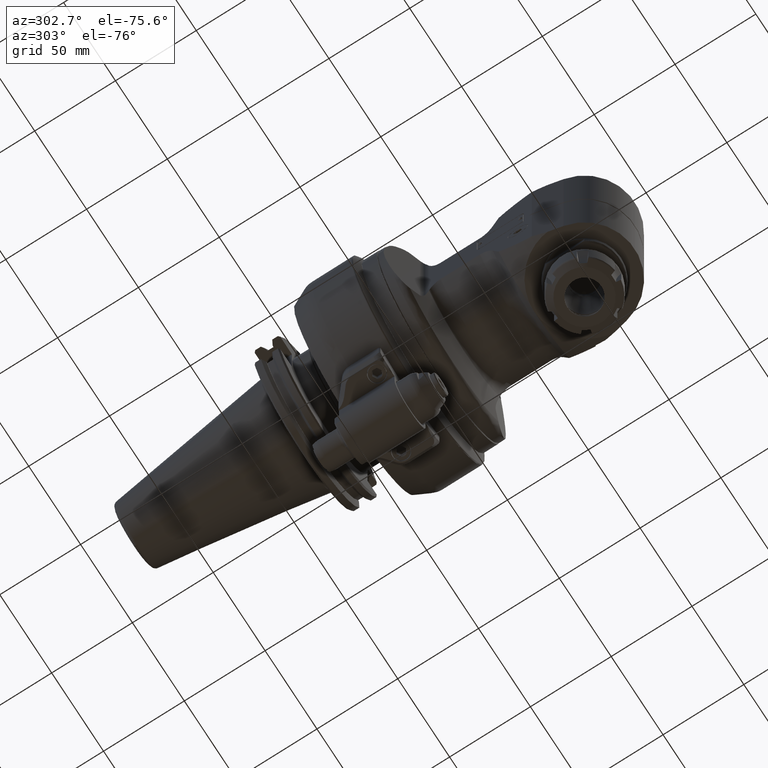
[diagram: clean part render]
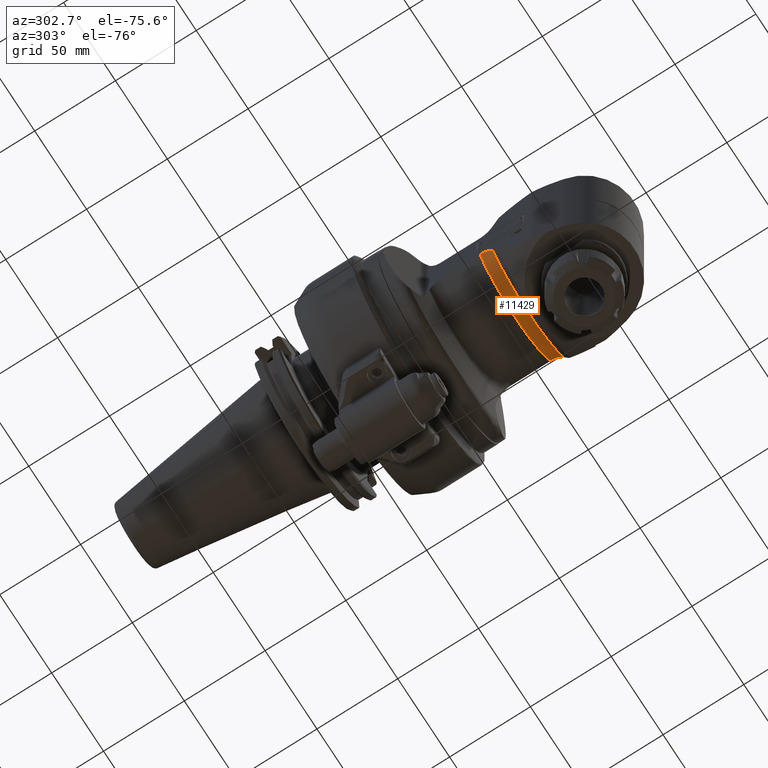
[diagram: same view with one face highlighted and labeled with its STEP entity id]
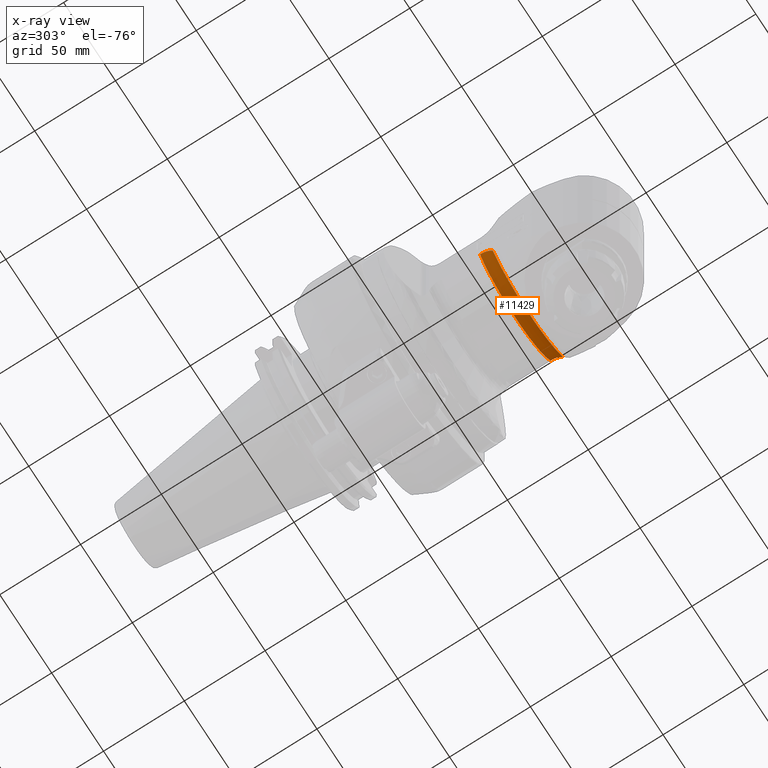
[diagram: x-ray of the same camera — body ghosted, the highlighted face saturated]
A machine part, auxiliary view. The second image highlights one B-rep face of the part: STEP entity #11429.
The next image is the same camera in x-ray: the body ghosted, the highlighted face saturated — about 0% of this face is hidden behind the body in this view.
In plain terms, the highlighted toroidal blend (fillet) surface has major radius 47 mm and minor (blend) radius 9 mm.
Its self-contained STEP definition (entity closure, byte-faithful):
#185=B_SPLINE_CURVE_WITH_KNOTS('',3,(#17447,#17448,#17449,#17450,#17451,
#17452,#17453,#17454,#17455,#17456,#17457,#17458,#17459,#17460),
 .UNSPECIFIED.,.F.,.F.,(4,2,2,2,2,2,4),(2.24338921671795,2.42136508411959,
2.7017409437378,2.91218233429832,3.12262372485883,3.26662172016158,3.38938345646085),
 .UNSPECIFIED.);
#196=B_SPLINE_CURVE_WITH_KNOTS('',3,(#17814,#17815,#17816,#17817,#17818,
#17819,#17820,#17821,#17822,#17823,#17824,#17825,#17826,#17827),
 .UNSPECIFIED.,.F.,.F.,(4,2,2,2,2,2,4),(-4.53537769620374,-4.3574018288021,
-4.07702596918389,-3.86658457862338,-3.65614318806286,-3.51214519276011,
-3.38938345646085),.UNSPECIFIED.);
#381=TOROIDAL_SURFACE('',#12272,47.,9.);
#968=CIRCLE('',#12259,42.5);
#975=CIRCLE('',#12273,38.);
#1605=FACE_OUTER_BOUND('',#2330,.T.);
#2330=EDGE_LOOP('',(#7835,#7836,#7837,#7838));
#4650=VERTEX_POINT('',#17442);
#4651=VERTEX_POINT('',#17446);
#4724=VERTEX_POINT('',#17811);
#4725=VERTEX_POINT('',#17813);
#5826=EDGE_CURVE('',#4650,#4651,#185,.T.);
#5915=EDGE_CURVE('',#4725,#4724,#196,.T.);
#5937=EDGE_CURVE('',#4650,#4725,#968,.T.);
#5944=EDGE_CURVE('',#4724,#4651,#975,.T.);
#7835=ORIENTED_EDGE('',*,*,#5944,.T.);
#7836=ORIENTED_EDGE('',*,*,#5826,.F.);
#7837=ORIENTED_EDGE('',*,*,#5937,.T.);
#7838=ORIENTED_EDGE('',*,*,#5915,.T.);
#11429=ADVANCED_FACE('',(#1605),#381,.F.);
#12259=AXIS2_PLACEMENT_3D('',#17889,#13859,#13860);
#12272=AXIS2_PLACEMENT_3D('',#17902,#13885,#13886);
#12273=AXIS2_PLACEMENT_3D('',#17903,#13887,#13888);
#13859=DIRECTION('center_axis',(-1.,0.,0.));
#13860=DIRECTION('ref_axis',(0.,1.,0.));
#13885=DIRECTION('center_axis',(-1.,0.,0.));
#13886=DIRECTION('ref_axis',(0.,0.,1.));
#13887=DIRECTION('center_axis',(1.,0.,0.));
#13888=DIRECTION('ref_axis',(0.,0.44659375653888,-0.894736842105259));
#17442=CARTESIAN_POINT('',(243.006472673,25.5,34.));
#17446=CARTESIAN_POINT('',(235.2122440389,16.97056274848,34.));
#17447=CARTESIAN_POINT('Ctrl Pts',(243.006472672964,25.5000000000124,34.));
#17448=CARTESIAN_POINT('Ctrl Pts',(242.801163143501,24.9073224394958,34.));
#17449=CARTESIAN_POINT('Ctrl Pts',(242.563063857014,24.3019762332053,34.));
#17450=CARTESIAN_POINT('Ctrl Pts',(241.879221421984,22.775617262053,34.));
#17451=CARTESIAN_POINT('Ctrl Pts',(241.390853415105,21.8740827520354,34.));
#17452=CARTESIAN_POINT('Ctrl Pts',(240.499302079956,20.5022881748303,34.));
#17453=CARTESIAN_POINT('Ctrl Pts',(240.041991813742,19.8818483557008,34.));
#17454=CARTESIAN_POINT('Ctrl Pts',(239.018125943999,18.7484497607113,34.));
#17455=CARTESIAN_POINT('Ctrl Pts',(238.450410072228,18.236539663176,34.));
#17456=CARTESIAN_POINT('Ctrl Pts',(237.466115327277,17.5830700752859,34.));
#17457=CARTESIAN_POINT('Ctrl Pts',(236.952877761955,17.3216241650835,34.));
#17458=CARTESIAN_POINT('Ctrl Pts',(236.105867080769,17.0509805712282,34.));
#17459=CARTESIAN_POINT('Ctrl Pts',(235.621449826564,16.9705627484771,34.));
#17460=CARTESIAN_POINT('Ctrl Pts',(235.2122440389,16.9705627484771,34.));
#17811=CARTESIAN_POINT('',(235.2122440389,16.97056274848,-34.));
#17813=CARTESIAN_POINT('',(243.006472673,25.5,-34.));
#17814=CARTESIAN_POINT('Ctrl Pts',(243.006472672964,25.5000000000124,-34.));
#17815=CARTESIAN_POINT('Ctrl Pts',(242.801163143501,24.9073224394958,-34.));
#17816=CARTESIAN_POINT('Ctrl Pts',(242.563063857014,24.3019762332053,-34.));
#17817=CARTESIAN_POINT('Ctrl Pts',(241.879221421984,22.775617262053,-34.));
#17818=CARTESIAN_POINT('Ctrl Pts',(241.390853415105,21.8740827520354,-34.));
#17819=CARTESIAN_POINT('Ctrl Pts',(240.499302079956,20.5022881748303,-34.));
#17820=CARTESIAN_POINT('Ctrl Pts',(240.041991813742,19.8818483557008,-34.));
#17821=CARTESIAN_POINT('Ctrl Pts',(239.018125943999,18.7484497607113,-34.));
#17822=CARTESIAN_POINT('Ctrl Pts',(238.450410072228,18.236539663176,-34.));
#17823=CARTESIAN_POINT('Ctrl Pts',(237.466115327277,17.5830700752859,-34.));
#17824=CARTESIAN_POINT('Ctrl Pts',(236.952877761955,17.3216241650835,-34.));
#17825=CARTESIAN_POINT('Ctrl Pts',(236.105867080769,17.0509805712282,-34.));
#17826=CARTESIAN_POINT('Ctrl Pts',(235.621449826564,16.9705627484771,-34.));
#17827=CARTESIAN_POINT('Ctrl Pts',(235.2122440389,16.9705627484771,-34.));
#17889=CARTESIAN_POINT('Origin',(243.006472673,0.,0.));
#17902=CARTESIAN_POINT('Origin',(235.2122440389,0.,0.));
#17903=CARTESIAN_POINT('Origin',(235.2122440389,0.,0.));